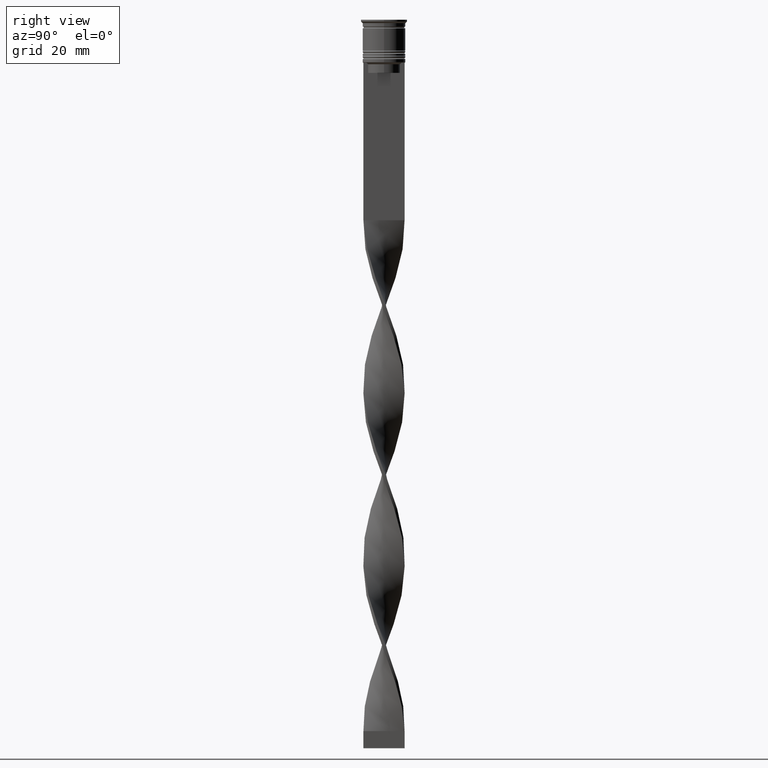
[diagram: clean part render]
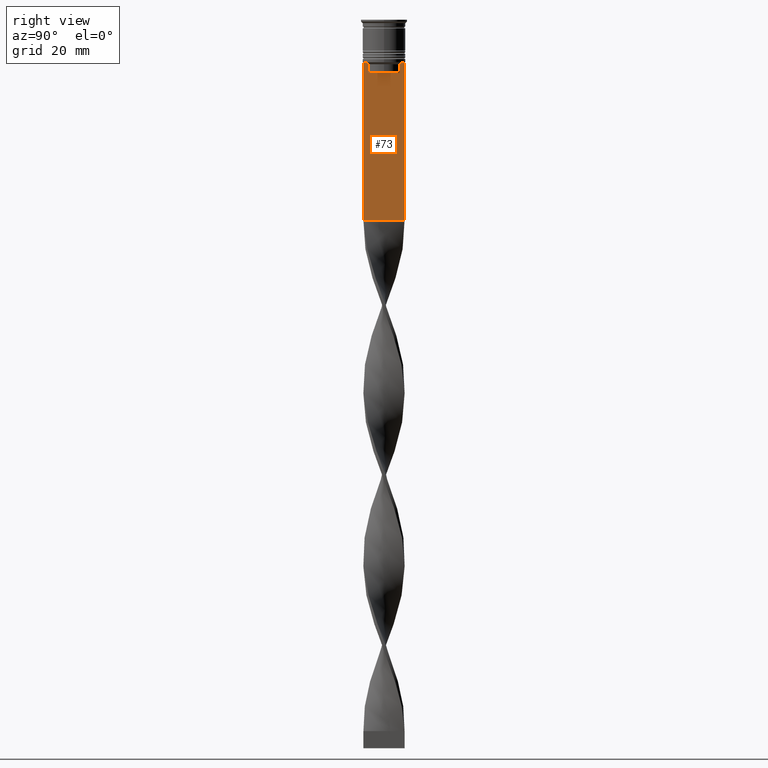
[diagram: same view with one face highlighted and labeled with its STEP entity id]
A machine part, right view. The second image highlights one B-rep face of the part: STEP entity #73.
In plain terms, the highlighted planar face has unit normal (-1, 0, 0).
Its self-contained STEP definition (entity closure, byte-faithful):
#73 = ADVANCED_FACE ( 'NONE', ( #1098 ), #1426, .F. ) ;
#100 = VERTEX_POINT ( 'NONE', #310 ) ;
#301 = CARTESIAN_POINT ( 'NONE',  ( 0.5000000000000002220, 4.790630915080664742, -12.83338087185995491 ) ) ;
#310 = CARTESIAN_POINT ( 'NONE',  ( 0.5000000000000002220, -4.623040125285526436, -13.00000000000000178 ) ) ;
#314 = ORIENTED_EDGE ( 'NONE', *, *, #1217, .T. ) ;
#533 = VERTEX_POINT ( 'NONE', #579 ) ;
#542 = DIRECTION ( 'NONE',  ( 0.000000000000000000, -1.000000000000000000, 0.000000000000000000 ) ) ;
#576 = VECTOR ( 'NONE', #3774, 1000.000000000000000 ) ;
#579 = CARTESIAN_POINT ( 'NONE',  ( 0.5000000000000002220, 6.000000000000000888, -58.50000000000000000 ) ) ;
#587 = ORIENTED_EDGE ( 'NONE', *, *, #1320, .F. ) ;
#669 = DIRECTION ( 'NONE',  ( 0.000000000000000000, 0.000000000000000000, -1.000000000000000000 ) ) ;
#677 = CARTESIAN_POINT ( 'NONE',  ( 0.5000000000000002220, -4.623040125285526436, -15.50000000000000000 ) ) ;
#727 = CARTESIAN_POINT ( 'NONE',  ( 0.5000000000000002220, -6.000000000000000000, -58.50000000000000000 ) ) ;
#776 = VERTEX_POINT ( 'NONE', #677 ) ;
#811 = AXIS2_PLACEMENT_3D ( 'NONE', #3274, #2025, #2962 ) ;
#832 = CARTESIAN_POINT ( 'NONE',  ( 0.5000000000000002220, -4.790630799407577634, -12.83338098686238915 ) ) ;
#848 = CARTESIAN_POINT ( 'NONE',  ( 0.5000000000000002220, -4.623040125285526436, -13.00000000000000178 ) ) ;
#855 = VERTEX_POINT ( 'NONE', #3049 ) ;
#880 = CARTESIAN_POINT ( 'NONE',  ( 0.5000000000000002220, 4.958169823806760412, -12.66670956677067927 ) ) ;
#922 = CARTESIAN_POINT ( 'NONE',  ( 0.5000000000000002220, -6.000000000000000000, -12.50000000000000000 ) ) ;
#923 = EDGE_CURVE ( 'NONE', #1515, #2961, #2033, .T. ) ;
#937 = CARTESIAN_POINT ( 'NONE',  ( 0.5000000000000002220, 4.650000000000001243, -15.50000000000000000 ) ) ;
#946 = EDGE_CURVE ( 'NONE', #855, #3207, #3137, .T. ) ;
#1098 = FACE_OUTER_BOUND ( 'NONE', #2050, .T. ) ;
#1217 = EDGE_CURVE ( 'NONE', #2087, #3180, #1801, .T. ) ;
#1282 = DIRECTION ( 'NONE',  ( 0.000000000000000000, -1.000000000000000000, 0.000000000000000000 ) ) ;
#1300 = VERTEX_POINT ( 'NONE', #2413 ) ;
#1312 = VECTOR ( 'NONE', #3324, 1000.000000000000000 ) ;
#1320 = EDGE_CURVE ( 'NONE', #1515, #533, #3256, .T. ) ;
#1411 = LINE ( 'NONE', #3196, #2862 ) ;
#1426 = PLANE ( 'NONE',  #811 ) ;
#1436 = VECTOR ( 'NONE', #1625, 1000.000000000000000 ) ;
#1501 = CARTESIAN_POINT ( 'NONE',  ( 0.5000000000000002220, 4.623040125285526436, -15.50000000000000000 ) ) ;
#1515 = VERTEX_POINT ( 'NONE', #2504 ) ;
#1537 = EDGE_CURVE ( 'NONE', #100, #855, #2683, .T. ) ;
#1580 = ORIENTED_EDGE ( 'NONE', *, *, #923, .T. ) ;
#1625 = DIRECTION ( 'NONE',  ( 0.000000000000000000, 0.000000000000000000, -1.000000000000000000 ) ) ;
#1726 = CARTESIAN_POINT ( 'NONE',  ( 0.5000000000000002220, -6.000000000000000000, -12.50000000000000000 ) ) ;
#1728 = CARTESIAN_POINT ( 'NONE',  ( 0.5000000000000002220, 4.623040125285526436, -13.00000000000000178 ) ) ;
#1801 = LINE ( 'NONE', #2983, #2541 ) ;
#2025 = DIRECTION ( 'NONE',  ( -1.000000000000000000, 0.000000000000000000, 0.000000000000000000 ) ) ;
#2033 = LINE ( 'NONE', #3713, #576 ) ;
#2035 = CARTESIAN_POINT ( 'NONE',  ( 0.5000000000000002220, 5.125670687822231564, -12.50000000000000000 ) ) ;
#2050 = EDGE_LOOP ( 'NONE', ( #1580, #2324, #314, #3621, #2125, #3564, #3650, #3178, #2869, #587 ) ) ;
#2087 = VERTEX_POINT ( 'NONE', #2257 ) ;
#2103 = EDGE_CURVE ( 'NONE', #776, #100, #1411, .T. ) ;
#2125 = ORIENTED_EDGE ( 'NONE', *, *, #2103, .T. ) ;
#2257 = CARTESIAN_POINT ( 'NONE',  ( 0.5000000000000002220, 4.623040125285526436, -13.00000000000000178 ) ) ;
#2324 = ORIENTED_EDGE ( 'NONE', *, *, #3053, .T. ) ;
#2332 = CARTESIAN_POINT ( 'NONE',  ( 0.5000000000000002220, -5.125670687822231564, -12.50000000000000000 ) ) ;
#2353 = EDGE_CURVE ( 'NONE', #3207, #1300, #3329, .T. ) ;
#2380 = CARTESIAN_POINT ( 'NONE',  ( 0.5000000000000002220, -6.000000000000000000, -0.4584054212077061097 ) ) ;
#2413 = CARTESIAN_POINT ( 'NONE',  ( 0.5000000000000002220, -5.999999999999999112, -58.50000000000000000 ) ) ;
#2443 = LINE ( 'NONE', #727, #1312 ) ;
#2504 = CARTESIAN_POINT ( 'NONE',  ( 0.5000000000000002220, 6.000000000000000888, -12.50000000000000000 ) ) ;
#2521 = CARTESIAN_POINT ( 'NONE',  ( 0.5000000000000002220, 6.000000000000000888, -0.4584054212077061097 ) ) ;
#2541 = VECTOR ( 'NONE', #669, 1000.000000000000000 ) ;
#2683 = B_SPLINE_CURVE_WITH_KNOTS ( 'NONE', 3,
 ( #848, #832, #3206, #2332 ),
 .UNSPECIFIED., .F., .F.,
 ( 4, 4 ),
 ( 0.02203698174624554168, 0.02275222543365897770 ),
 .UNSPECIFIED. ) ;
#2862 = VECTOR ( 'NONE', #3771, 1000.000000000000000 ) ;
#2869 = ORIENTED_EDGE ( 'NONE', *, *, #3571, .T. ) ;
#2961 = VERTEX_POINT ( 'NONE', #3201 ) ;
#2962 = DIRECTION ( 'NONE',  ( 0.000000000000000000, 0.000000000000000000, 1.000000000000000000 ) ) ;
#2983 = CARTESIAN_POINT ( 'NONE',  ( 0.5000000000000002220, 4.623040125285526436, 0.000000000000000000 ) ) ;
#3017 = B_SPLINE_CURVE_WITH_KNOTS ( 'NONE', 3,
 ( #2035, #880, #301, #1728 ),
 .UNSPECIFIED., .F., .F.,
 ( 4, 4 ),
 ( 0.008759809102772709091, 0.009468778395565353653 ),
 .UNSPECIFIED. ) ;
#3048 = LINE ( 'NONE', #937, #3473 ) ;
#3049 = CARTESIAN_POINT ( 'NONE',  ( 0.5000000000000002220, -5.125670687822231564, -12.50000000000000000 ) ) ;
#3053 = EDGE_CURVE ( 'NONE', #2961, #2087, #3017, .T. ) ;
#3137 = LINE ( 'NONE', #1726, #3467 ) ;
#3178 = ORIENTED_EDGE ( 'NONE', *, *, #2353, .T. ) ;
#3180 = VERTEX_POINT ( 'NONE', #1501 ) ;
#3196 = CARTESIAN_POINT ( 'NONE',  ( 0.5000000000000002220, -4.623040125285526436, 0.000000000000000000 ) ) ;
#3201 = CARTESIAN_POINT ( 'NONE',  ( 0.5000000000000002220, 5.125670687822231564, -12.50000000000000000 ) ) ;
#3206 = CARTESIAN_POINT ( 'NONE',  ( 0.5000000000000002220, -4.958169719475986170, -12.66670967060858111 ) ) ;
#3207 = VERTEX_POINT ( 'NONE', #922 ) ;
#3226 = VECTOR ( 'NONE', #3594, 1000.000000000000000 ) ;
#3245 = EDGE_CURVE ( 'NONE', #3180, #776, #3048, .T. ) ;
#3256 = LINE ( 'NONE', #2521, #1436 ) ;
#3274 = CARTESIAN_POINT ( 'NONE',  ( 0.5000000000000002220, -6.000000000000000000, -0.4584054212077061097 ) ) ;
#3324 = DIRECTION ( 'NONE',  ( 0.000000000000000000, 1.000000000000000000, 0.000000000000000000 ) ) ;
#3329 = LINE ( 'NONE', #2380, #3226 ) ;
#3467 = VECTOR ( 'NONE', #542, 1000.000000000000000 ) ;
#3473 = VECTOR ( 'NONE', #1282, 1000.000000000000000 ) ;
#3564 = ORIENTED_EDGE ( 'NONE', *, *, #1537, .T. ) ;
#3571 = EDGE_CURVE ( 'NONE', #1300, #533, #2443, .T. ) ;
#3594 = DIRECTION ( 'NONE',  ( 0.000000000000000000, 0.000000000000000000, -1.000000000000000000 ) ) ;
#3621 = ORIENTED_EDGE ( 'NONE', *, *, #3245, .T. ) ;
#3650 = ORIENTED_EDGE ( 'NONE', *, *, #946, .T. ) ;
#3713 = CARTESIAN_POINT ( 'NONE',  ( 0.5000000000000002220, -6.000000000000000000, -12.50000000000000000 ) ) ;
#3771 = DIRECTION ( 'NONE',  ( -0.000000000000000000, -0.000000000000000000, 1.000000000000000000 ) ) ;
#3774 = DIRECTION ( 'NONE',  ( 0.000000000000000000, -1.000000000000000000, 0.000000000000000000 ) ) ;